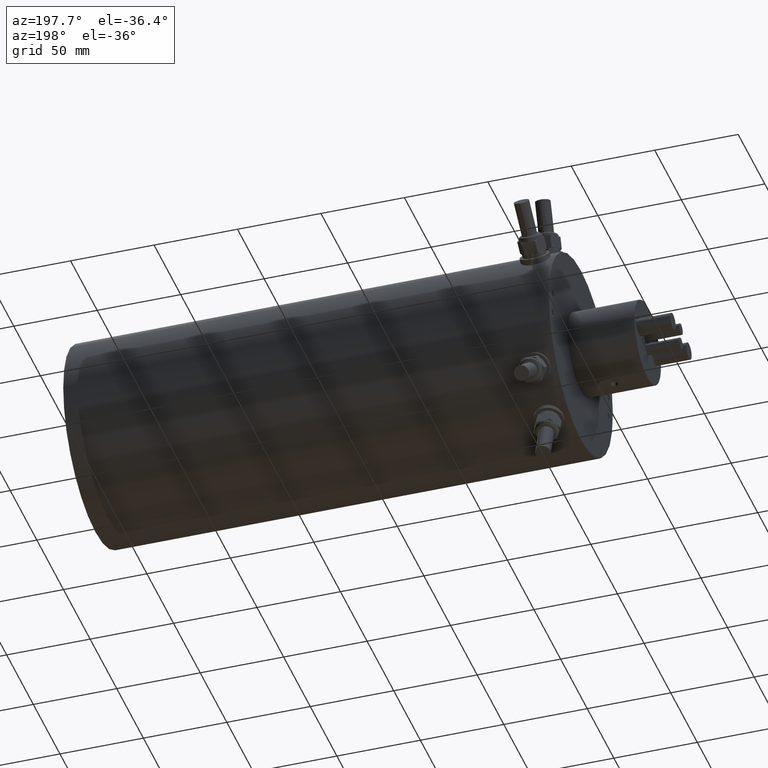
[diagram: clean part render]
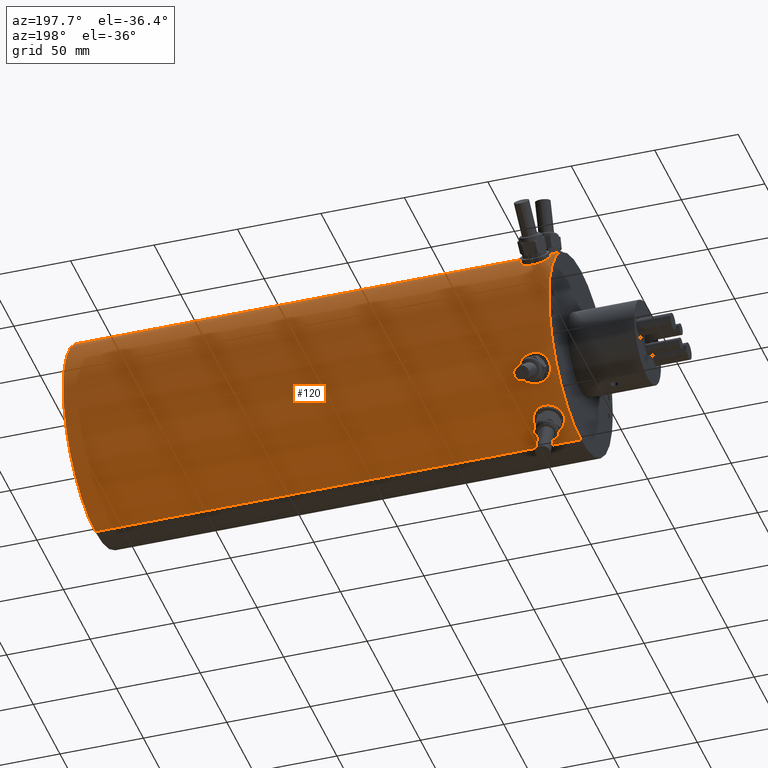
[diagram: same view with one face highlighted and labeled with its STEP entity id]
A machine part, auxiliary view. The second image highlights one B-rep face of the part: STEP entity #120.
In plain terms, the highlighted cylindrical surface (partial cylindrical patch) has radius 60 mm, axis along (1, -0, -0).
Its self-contained STEP definition (entity closure, byte-faithful):
#81 = EDGE_CURVE ( 'NONE', #1063, #1944, #4943, .T. ) ;
#120 = ADVANCED_FACE ( 'NONE', ( #3788, #1337, #3036 ), #2851, .T. ) ;
#128 = CARTESIAN_POINT ( 'NONE',  ( 54.49961068384467200, 51.04929052214537700, -31.52734152597862800 ) ) ;
#134 = CARTESIAN_POINT ( 'NONE',  ( 48.02437529377677100, 40.62290405727836200, -44.15750622305009900 ) ) ;
#145 = CARTESIAN_POINT ( 'NONE',  ( 60.80115797544112900, 47.92001640741030100, -36.10740536088575700 ) ) ;
#152 = CARTESIAN_POINT ( 'NONE',  ( 43.81817477773310500, 44.63703228801792700, -40.09510935350613900 ) ) ;
#157 = EDGE_CURVE ( 'NONE', #3726, #1540, #2169, .T. ) ;
#167 = CARTESIAN_POINT ( 'NONE',  ( 60.19848166192943500, 42.97778959142814900, -41.87057281649100600 ) ) ;
#175 = CARTESIAN_POINT ( 'NONE',  ( 46.60783385243068700, 49.98312170835593800, -33.19429326255863100 ) ) ;
#187 = CARTESIAN_POINT ( 'NONE',  ( 54.79641752463240300, 39.96931057223110900, -44.74887246636057400 ) ) ;
#199 = CARTESIAN_POINT ( 'NONE',  ( 50.46043446531330500, 12.16621057402824800, -58.75360918080611600 ) ) ;
#209 = DIRECTION ( 'NONE',  ( 0.0000000000000000000, 0.0000000000000000000, -1.000000000000000000 ) ) ;
#217 = CARTESIAN_POINT ( 'NONE',  ( 44.77694116726944900, 16.28574549737845300, -57.74807806524725600 ) ) ;
#226 = CARTESIAN_POINT ( 'NONE',  ( 330.9999999999999400, 0.0000000000000000000, 0.0000000000000000000 ) ) ;
#234 = CARTESIAN_POINT ( 'NONE',  ( 44.50412579120686700, 24.17704148792480400, -54.91390597230535100 ) ) ;
#251 = CARTESIAN_POINT ( 'NONE',  ( 51.02430710264894000, 28.54622015293073600, -52.77420420771422700 ) ) ;
#321 = CARTESIAN_POINT ( 'NONE',  ( 60.19211748356490700, 24.65614315764076300, -54.70199809677787100 ) ) ;
#338 = CARTESIAN_POINT ( 'NONE',  ( 60.80515477026768400, 17.55044457386748000, -57.37642762875801600 ) ) ;
#357 = CARTESIAN_POINT ( 'NONE',  ( 55.35351015672178200, 12.40809133542172300, -58.70303777524548400 ) ) ;
#439 = EDGE_LOOP ( 'NONE', ( #605, #1208 ) ) ;
#522 = CARTESIAN_POINT ( 'NONE',  ( 52.47999999999997600, 39.74096744707470200, -44.95170192963275500 ) ) ;
#536 = CARTESIAN_POINT ( 'NONE',  ( 55.34162323892668000, 50.92115027429966300, -31.73395258407509800 ) ) ;
#545 = CARTESIAN_POINT ( 'NONE',  ( 47.06447904855041000, 41.10831186309639000, -43.70516674192030800 ) ) ;
#559 = CARTESIAN_POINT ( 'NONE',  ( 61.07045475704094900, 47.41195642868186200, -36.77206015981716500 ) ) ;
#563 = CARTESIAN_POINT ( 'NONE',  ( 43.59021717148847600, 45.58722317472049200, -39.01464255734002500 ) ) ;
#576 = CARTESIAN_POINT ( 'NONE',  ( 59.54019001172614600, 42.29809580366339400, -42.55493589832875800 ) ) ;
#582 = CARTESIAN_POINT ( 'NONE',  ( 47.77767203715902200, 50.45059593139600200, -32.47712516286088700 ) ) ;
#597 = CARTESIAN_POINT ( 'NONE',  ( 53.64927542782810800, 39.78481181650599300, -44.91305187430835800 ) ) ;
#605 = ORIENTED_EDGE ( 'NONE', *, *, #81, .F. ) ;
#616 = CARTESIAN_POINT ( 'NONE',  ( 49.61952511148975000, 12.40367673881934100, -58.70397040052361600 ) ) ;
#631 = CARTESIAN_POINT ( 'NONE',  ( 44.25514392896392500, 17.28336020155741800, -57.45868535057630300 ) ) ;
#637 = DIRECTION ( 'NONE',  ( 1.000000000000000000, -0.0000000000000000000, -0.0000000000000000000 ) ) ;
#650 = CARTESIAN_POINT ( 'NONE',  ( 44.92855631780052100, 24.87502324304952900, -54.60120412410492500 ) ) ;
#666 = CARTESIAN_POINT ( 'NONE',  ( 51.89863143535617200, 28.63597117426592600, -52.72553463954761100 ) ) ;
#731 = CARTESIAN_POINT ( 'NONE',  ( 54.49961068384468600, 28.44631167436068600, -52.82812393635826000 ) ) ;
#747 = CARTESIAN_POINT ( 'NONE',  ( 60.80115797544115000, 23.44624887814149300, -55.22993851097467700 ) ) ;
#769 = CARTESIAN_POINT ( 'NONE',  ( 60.19848166192942100, 16.28457117643364800, -57.74987452580143100 ) ) ;
#786 = CARTESIAN_POINT ( 'NONE',  ( 54.51074857548507400, 12.16870126265632000, -58.75309421268810400 ) ) ;
#813 = CARTESIAN_POINT ( 'NONE',  ( 39.99999999999997900, 0.0000000000000000000, -60.00000000000000000 ) ) ;
#822 = EDGE_LOOP ( 'NONE', ( #2832, #4887 ) ) ;
#947 = CARTESIAN_POINT ( 'NONE',  ( 330.9999999999999400, 7.347880794884118400E-015, 60.00000000000000000 ) ) ;
#965 = CARTESIAN_POINT ( 'NONE',  ( 56.41157728291419500, 50.68319564177648600, -32.11281358142494500 ) ) ;
#970 = CARTESIAN_POINT ( 'NONE',  ( 46.39722302810839200, 41.52181673689707300, -43.31259787783233900 ) ) ;
#971 = CARTESIAN_POINT ( 'NONE',  ( 52.47999999999997600, 11.94083641532065500, -58.79979953794529000 ) ) ;
#972 = VERTEX_POINT ( 'NONE', #947 ) ;
#979 = CARTESIAN_POINT ( 'NONE',  ( 61.31133926362061000, 46.70978296926113400, -37.66323643914530800 ) ) ;
#985 = CARTESIAN_POINT ( 'NONE',  ( 43.64781037586733000, 46.70643728659167900, -37.66741781994534200 ) ) ;
#987 = CARTESIAN_POINT ( 'NONE',  ( 52.47999999999997600, 51.16973114730138400, -31.33143173097735400 ) ) ;
#999 = CARTESIAN_POINT ( 'NONE',  ( 58.97486873250759500, 41.82020726188239500, -43.02455873826281200 ) ) ;
#1006 = CARTESIAN_POINT ( 'NONE',  ( 48.54112053126192400, 50.68126959848905200, -32.11585624203376500 ) ) ;
#1019 = CARTESIAN_POINT ( 'NONE',  ( 52.47999999999997600, 39.74096744707470200, -44.95170192963275500 ) ) ;
#1034 = CARTESIAN_POINT ( 'NONE',  ( 48.53470964346901400, 12.83253051121331900, -58.61208897114283200 ) ) ;
#1051 = CARTESIAN_POINT ( 'NONE',  ( 43.88995482153924900, 18.33720688511496300, -57.12989185474712200 ) ) ;
#1063 = VERTEX_POINT ( 'NONE', #2209 ) ;
#1067 = CARTESIAN_POINT ( 'NONE',  ( 45.77927622806561900, 25.94070675835210700, -54.10409683000221300 ) ) ;
#1077 = CARTESIAN_POINT ( 'NONE',  ( 330.9999999999999400, 0.0000000000000000000, -60.00000000000000000 ) ) ;
#1084 = CARTESIAN_POINT ( 'NONE',  ( 52.47999999999997600, 28.64857121289410800, -52.71868138961496400 ) ) ;
#1123 = CARTESIAN_POINT ( 'NONE',  ( 330.9999999999999400, 0.0000000000000000000, -60.00000000000000000 ) ) ;
#1126 = CARTESIAN_POINT ( 'NONE',  ( 53.06047466969626900, 28.64857121289410800, -52.71868138961495700 ) ) ;
#1146 = CARTESIAN_POINT ( 'NONE',  ( 55.34162323892668700, 28.23203343543082900, -52.94298423744972100 ) ) ;
#1154 = VERTEX_POINT ( 'NONE', #2647 ) ;
#1164 = CARTESIAN_POINT ( 'NONE',  ( 61.07045475704094900, 22.67392863045074600, -55.55151646223229300 ) ) ;
#1181 = CARTESIAN_POINT ( 'NONE',  ( 59.54019001172615300, 15.35375754851601500, -58.00270344620278000 ) ) ;
#1199 = CARTESIAN_POINT ( 'NONE',  ( 53.06811196234870200, 11.94083641532065900, -58.79979953794531900 ) ) ;
#1208 = ORIENTED_EDGE ( 'NONE', *, *, #1359, .F. ) ;
#1337 = FACE_BOUND ( 'NONE', #439, .T. ) ;
#1359 = EDGE_CURVE ( 'NONE', #1944, #1063, #2198, .T. ) ;
#1365 = CARTESIAN_POINT ( 'NONE',  ( 51.31348332508414200, 39.78482475048070200, -44.91303603168620400 ) ) ;
#1381 = CARTESIAN_POINT ( 'NONE',  ( 57.17738133623625200, 50.45232711286882200, -32.47444182064396800 ) ) ;
#1388 = CARTESIAN_POINT ( 'NONE',  ( 45.41543254224568200, 42.28650820242383200, -42.56863727252368100 ) ) ;
#1397 = CARTESIAN_POINT ( 'NONE',  ( 61.37038377922747400, 45.58879960128772500, -39.01290236828730000 ) ) ;
#1406 = CARTESIAN_POINT ( 'NONE',  ( 44.04339495447889200, 47.75236368579575000, -36.33184384022649000 ) ) ;
#1420 = CARTESIAN_POINT ( 'NONE',  ( 57.91464067733073100, 41.10622237149735300, -43.70796437289236300 ) ) ;
#1425 = CARTESIAN_POINT ( 'NONE',  ( 49.61434651376066500, 50.92876124122224000, -31.72242003704573000 ) ) ;
#1449 = CARTESIAN_POINT ( 'NONE',  ( 47.30001276409982600, 13.57701187504819100, -58.44391474752685400 ) ) ;
#1466 = CARTESIAN_POINT ( 'NONE',  ( 43.64678649716178400, 19.42688350379911500, -56.77081978917068700 ) ) ;
#1485 = CARTESIAN_POINT ( 'NONE',  ( 47.05605769946993200, 27.01982355717634100, -53.57270097398065200 ) ) ;
#1496 = VERTEX_POINT ( 'NONE', #2698 ) ;
#1540 = VERTEX_POINT ( 'NONE', #1123 ) ;
#1563 = CARTESIAN_POINT ( 'NONE',  ( 56.41157728291419500, 27.83652818004265200, -53.15211016939621700 ) ) ;
#1580 = CARTESIAN_POINT ( 'NONE',  ( 61.31133926362061700, 21.62024043706516000, -55.97221102967019100 ) ) ;
#1601 = CARTESIAN_POINT ( 'NONE',  ( 58.97486873250760200, 14.70508251118915900, -58.17046448489257000 ) ) ;
#1786 = CARTESIAN_POINT ( 'NONE',  ( 50.46043446531330500, 39.91305201530242600, -44.79901282758655200 ) ) ;
#1800 = CARTESIAN_POINT ( 'NONE',  ( 58.35207205346161900, 49.98282675057183200, -33.19467616097935500 ) ) ;
#1806 = CARTESIAN_POINT ( 'NONE',  ( 44.77694116726947000, 42.97790835292148200, -41.86842987554178600 ) ) ;
#1819 = CARTESIAN_POINT ( 'NONE',  ( 61.14397126175063600, 44.64344398461283700, -40.08795158772226600 ) ) ;
#1825 = CARTESIAN_POINT ( 'NONE',  ( 44.50412579120687400, 48.39488510304594400, -35.46831684908399800 ) ) ;
#1835 = CARTESIAN_POINT ( 'NONE',  ( 56.93431000992978900, 40.63396042657264200, -44.14635197258299800 ) ) ;
#1840 = CARTESIAN_POINT ( 'NONE',  ( 51.02430710264893300, 51.10885393831846100, -31.43069143192270300 ) ) ;
#1845 = CARTESIAN_POINT ( 'NONE',  ( 52.47999999999997600, 11.94083641532065500, -58.79979953794529000 ) ) ;
#1864 = CARTESIAN_POINT ( 'NONE',  ( 46.61241718251703500, 14.11170251471278500, -58.31719091579168400 ) ) ;
#1879 = CARTESIAN_POINT ( 'NONE',  ( 43.58978406468358500, 21.06381479808064900, -56.18409878970147300 ) ) ;
#1896 = CARTESIAN_POINT ( 'NONE',  ( 48.02648421913404100, 27.58683075670856200, -53.28213658511104700 ) ) ;
#1902 = VERTEX_POINT ( 'NONE', #971 ) ;
#1914 = ORIENTED_EDGE ( 'NONE', *, *, #4886, .T. ) ;
#1944 = VERTEX_POINT ( 'NONE', #987 ) ;
#1963 = DIRECTION ( 'NONE',  ( 1.000000000000000000, -0.0000000000000000000, -0.0000000000000000000 ) ) ;
#1968 = CARTESIAN_POINT ( 'NONE',  ( 57.17738133623625900, 27.45577604946477000, -53.34985514683189900 ) ) ;
#1988 = CARTESIAN_POINT ( 'NONE',  ( 61.37038377922747400, 19.97460739860933600, -56.58056432694277800 ) ) ;
#2005 = CARTESIAN_POINT ( 'NONE',  ( 57.91464067733073800, 13.74505064088267200, -58.40531868037867000 ) ) ;
#2163 = CARTESIAN_POINT ( 'NONE',  ( 51.89174386437552800, 39.74096744707469500, -44.95170192963274800 ) ) ;
#2169 = LINE ( 'NONE', #1077, #2213 ) ;
#2176 = CARTESIAN_POINT ( 'NONE',  ( 53.06047466969626900, 51.16973114730137700, -31.33143173097733600 ) ) ;
#2180 = CARTESIAN_POINT ( 'NONE',  ( 49.61952511148973600, 40.09388435640951800, -44.63729130045347700 ) ) ;
#2192 = CARTESIAN_POINT ( 'NONE',  ( 59.54730265087157200, 49.26255481927010700, -34.25543291024613500 ) ) ;
#2198 = B_SPLINE_CURVE_WITH_KNOTS ( 'NONE', 3,
 ( #2940, #2176, #2557, #128, #2963, #536, #3332, #965, #3722, #1381, #4112, #1800, #4492, #2192, #4877, #2576, #145, #2980, #559, #3347, #979, #3744, #1397, #4128, #1819, #4513, #2208, #4898, #2599, #167, #3001, #576, #3363, #999, #3759, #1420, #4149, #1835, #4530, #2227, #4915, #2614, #187, #3020, #597, #3383, #1019 ),
 .UNSPECIFIED., .F., .F.,
 ( 4, 2, 2, 1, 2, 2, 2, 2, 2, 2, 2, 2, 2, 2, 2, 2, 2, 2, 2, 2, 2, 2, 2, 4 ),
 ( 0.02783248533309090600, 0.02957158933207742300, 0.03044114133157068900, 0.03131069333106396200, 0.03218024533055723100, 0.03304979733005049300, 0.03478890132903705900, 0.03652800532802362400, 0.03826710932701019000, 0.03913666132650347300, 0.04000621332599675600, 0.04174531732498335000, 0.04348442132396995000, 0.04435397332346325400, 0.04522352532295655800, 0.04696262932194315800, 0.04783218132143646200, 0.04870173332092976600, 0.05044083731991637300, 0.05131038931940966300, 0.05217994131890295300, 0.05304949331839625000, 0.05391904531788954700, 0.05565814931687615400 ),
 .UNSPECIFIED. ) ;
#2199 = CARTESIAN_POINT ( 'NONE',  ( 44.25514373163045400, 43.69717215439219900, -41.11900164645214100 ) ) ;
#2208 = CARTESIAN_POINT ( 'NONE',  ( 60.90434468433129200, 44.07631385244907600, -40.71064911556706500 ) ) ;
#2209 = CARTESIAN_POINT ( 'NONE',  ( 52.47999999999997600, 39.74096744707470200, -44.95170192963275500 ) ) ;
#2213 = VECTOR ( 'NONE', #4577, 1000.000000000000000 ) ;
#2214 = CARTESIAN_POINT ( 'NONE',  ( 44.92855631780050600, 48.84300411026174500, -34.84851822716971300 ) ) ;
#2227 = CARTESIAN_POINT ( 'NONE',  ( 56.16077188997894600, 40.33735514484084900, -44.41745562342038100 ) ) ;
#2231 = CARTESIAN_POINT ( 'NONE',  ( 51.89863143535618000, 51.16224581872704400, -31.34366683883161300 ) ) ;
#2258 = CARTESIAN_POINT ( 'NONE',  ( 45.78313587699641800, 14.90207093005289400, -58.12140640274249400 ) ) ;
#2272 = CARTESIAN_POINT ( 'NONE',  ( 43.87520824507041100, 22.67598036185615500, -55.55290778939812700 ) ) ;
#2284 = ORIENTED_EDGE ( 'NONE', *, *, #2902, .F. ) ;
#2286 = CARTESIAN_POINT ( 'NONE',  ( 48.80741413020456300, 27.94594260115370000, -53.09460382916579800 ) ) ;
#2353 = CARTESIAN_POINT ( 'NONE',  ( 58.35207205346159800, 26.68905963846187000, -53.73884620109176800 ) ) ;
#2367 = CARTESIAN_POINT ( 'NONE',  ( 61.14397126175063600, 18.61838080924111300, -57.03890645295462000 ) ) ;
#2383 = CARTESIAN_POINT ( 'NONE',  ( 56.93431000992981000, 13.11686599949191400, -58.54884250595252100 ) ) ;
#2471 = ORIENTED_EDGE ( 'NONE', *, *, #157, .F. ) ;
#2485 = DIRECTION ( 'NONE',  ( 1.000000000000000000, -0.0000000000000000000, -0.0000000000000000000 ) ) ;
#2557 = CARTESIAN_POINT ( 'NONE',  ( 53.63796547244613300, 51.14006732378952300, -31.38003856209659000 ) ) ;
#2562 = CARTESIAN_POINT ( 'NONE',  ( 48.53470964346900700, 40.41934190312110800, -44.34329276227671800 ) ) ;
#2576 = CARTESIAN_POINT ( 'NONE',  ( 60.46554900448473500, 48.40386575518908100, -35.45922387025422000 ) ) ;
#2585 = CARTESIAN_POINT ( 'NONE',  ( 43.88995482153924900, 44.44543292433408500, -40.30733421911115500 ) ) ;
#2599 = CARTESIAN_POINT ( 'NONE',  ( 60.47112654223362700, 43.33367964046209400, -41.50280011676076000 ) ) ;
#2605 = CARTESIAN_POINT ( 'NONE',  ( 45.77927622806562600, 49.51735945985675600, -33.88516892441893400 ) ) ;
#2614 = CARTESIAN_POINT ( 'NONE',  ( 55.35351015672177500, 40.09724119657559500, -44.63427632496924200 ) ) ;
#2619 = CARTESIAN_POINT ( 'NONE',  ( 52.47999999999997600, 51.16973114730138400, -31.33143173097735400 ) ) ;
#2625 = CARTESIAN_POINT ( 'NONE',  ( 51.31348332508415000, 11.99815090318501600, -58.78824253976646500 ) ) ;
#2641 = CARTESIAN_POINT ( 'NONE',  ( 44.92800868531912100, 16.04228681148401800, -57.81612619033227000 ) ) ;
#2647 = CARTESIAN_POINT ( 'NONE',  ( 39.99999999999997900, 7.347880794884118400E-015, 60.00000000000000000 ) ) ;
#2659 = CARTESIAN_POINT ( 'NONE',  ( 44.37802562683422300, 23.93243942736778300, -55.02100618543929800 ) ) ;
#2677 = CARTESIAN_POINT ( 'NONE',  ( 50.16856739708416100, 28.39422007099077700, -52.85623450141513000 ) ) ;
#2698 = CARTESIAN_POINT ( 'NONE',  ( 52.47999999999997600, 28.64857121289410800, -52.71868138961496400 ) ) ;
#2738 = CARTESIAN_POINT ( 'NONE',  ( 52.47999999999997600, 28.64857121289410800, -52.71868138961496400 ) ) ;
#2756 = CARTESIAN_POINT ( 'NONE',  ( 59.54730265087156500, 25.53490747368829600, -54.29735252754174000 ) ) ;
#2771 = CARTESIAN_POINT ( 'NONE',  ( 60.90434468433131300, 17.81588294361327100, -57.29461326486013200 ) ) ;
#2793 = CARTESIAN_POINT ( 'NONE',  ( 55.89915857554497300, 12.60211420501915000, -58.66194764552503200 ) ) ;
#2832 = ORIENTED_EDGE ( 'NONE', *, *, #4808, .F. ) ;
#2851 = CYLINDRICAL_SURFACE ( 'NONE', #4913, 60.00000000000000000 ) ;
#2902 = EDGE_CURVE ( 'NONE', #1540, #972, #3010, .T. ) ;
#2940 = CARTESIAN_POINT ( 'NONE',  ( 52.47999999999997600, 51.16973114730138400, -31.33143173097735400 ) ) ;
#2963 = CARTESIAN_POINT ( 'NONE',  ( 54.78493137023227900, 51.01127177980359300, -31.58888164011427300 ) ) ;
#2969 = CARTESIAN_POINT ( 'NONE',  ( 47.30001276409985400, 40.97999456503819700, -43.82540893044610900 ) ) ;
#2980 = CARTESIAN_POINT ( 'NONE',  ( 60.90077548725222600, 47.75226886174774400, -36.32903576132729700 ) ) ;
#2989 = CARTESIAN_POINT ( 'NONE',  ( 43.64678649716179800, 45.20958452523626600, -39.45153037919053000 ) ) ;
#3001 = CARTESIAN_POINT ( 'NONE',  ( 59.71490475704330700, 42.46588494153984100, -42.38758583203854600 ) ) ;
#3005 = CARTESIAN_POINT ( 'NONE',  ( 47.05605769946989600, 50.18620409327827000, -32.88540821422635200 ) ) ;
#3010 = CIRCLE ( 'NONE', #3974, 60.00000000000000000 ) ;
#3020 = CARTESIAN_POINT ( 'NONE',  ( 54.51074857548507400, 39.91495153086825800, -44.79732150780017700 ) ) ;
#3034 = CARTESIAN_POINT ( 'NONE',  ( 50.17849272848246000, 12.23600950162802500, -58.73914715845602100 ) ) ;
#3036 = FACE_OUTER_BOUND ( 'NONE', #3245, .T. ) ;
#3052 = CARTESIAN_POINT ( 'NONE',  ( 44.50288921625360000, 16.77976382391259200, -57.60647144765065500 ) ) ;
#3057 = CARTESIAN_POINT ( 'NONE',  ( 330.9999999999999400, 0.0000000000000000000, 0.0000000000000000000 ) ) ;
#3058 = DIRECTION ( 'NONE',  ( 1.000000000000000000, -0.0000000000000000000, -0.0000000000000000000 ) ) ;
#3064 = CARTESIAN_POINT ( 'NONE',  ( 44.77923781015156400, 24.64783341367635200, -54.70421110166650200 ) ) ;
#3082 = CARTESIAN_POINT ( 'NONE',  ( 51.31496238340456300, 28.58477439550647900, -52.75330815102992700 ) ) ;
#3132 = CARTESIAN_POINT ( 'NONE',  ( 53.63796547244614000, 28.59857817259984700, -52.74594422840574700 ) ) ;
#3149 = CARTESIAN_POINT ( 'NONE',  ( 60.46554900448474300, 24.18936545023822800, -54.91052154771431800 ) ) ;
#3160 = CARTESIAN_POINT ( 'NONE',  ( 60.47112654223362700, 16.77666734971625200, -57.60931904953363200 ) ) ;
#3177 = CARTESIAN_POINT ( 'NONE',  ( 54.79641752463236800, 12.24000209412171400, -58.73831563269379800 ) ) ;
#3223 = ORIENTED_EDGE ( 'NONE', *, *, #4614, .T. ) ;
#3245 = EDGE_LOOP ( 'NONE', ( #1914, #3223, #2284, #2471 ) ) ;
#3295 = LINE ( 'NONE', #3655, #3858 ) ;
#3332 = CARTESIAN_POINT ( 'NONE',  ( 55.88737095989259300, 50.81665377475443500, -31.90148644554675900 ) ) ;
#3335 = CARTESIAN_POINT ( 'NONE',  ( 46.61241718251704900, 41.37968832628591500, -43.44831755306626100 ) ) ;
#3347 = CARTESIAN_POINT ( 'NONE',  ( 61.14110653746355700, 47.23874371548809100, -36.99434947676530100 ) ) ;
#3353 = CARTESIAN_POINT ( 'NONE',  ( 43.58978406468358500, 46.33384811059922700, -38.12494944157563700 ) ) ;
#3363 = CARTESIAN_POINT ( 'NONE',  ( 59.16982811718381200, 41.97505134630775100, -42.87361125916017100 ) ) ;
#3368 = CARTESIAN_POINT ( 'NONE',  ( 48.02648421913404100, 50.53196453776706000, -32.35026847226406200 ) ) ;
#3383 = CARTESIAN_POINT ( 'NONE',  ( 53.06811196234869500, 39.74096744707470900, -44.95170192963276200 ) ) ;
#3394 = CARTESIAN_POINT ( 'NONE',  ( 49.34192031267142700, 12.50195926473159800, -58.68316383566573800 ) ) ;
#3415 = CARTESIAN_POINT ( 'NONE',  ( 44.05934704519030700, 17.80560131565119900, -57.29780328660679300 ) ) ;
#3419 = DIRECTION ( 'NONE',  ( 0.0000000000000000000, 0.0000000000000000000, -1.000000000000000000 ) ) ;
#3432 = CARTESIAN_POINT ( 'NONE',  ( 45.41104795524982100, 25.53283656216434100, -54.29831811085408300 ) ) ;
#3448 = CARTESIAN_POINT ( 'NONE',  ( 52.18969151463969800, 28.64857121289411900, -52.71868138961497200 ) ) ;
#3507 = CARTESIAN_POINT ( 'NONE',  ( 54.78493137023230000, 28.38261642060495000, -52.86240986738063400 ) ) ;
#3524 = CARTESIAN_POINT ( 'NONE',  ( 60.90077548725223300, 23.19016004195444600, -55.33800229517667900 ) ) ;
#3539 = CARTESIAN_POINT ( 'NONE',  ( 59.71490475704332800, 15.58274223754120900, -57.94166860640866900 ) ) ;
#3558 = CARTESIAN_POINT ( 'NONE',  ( 53.64927542782809400, 11.99813178072325600, -58.78824979289232300 ) ) ;
#3655 = CARTESIAN_POINT ( 'NONE',  ( 330.9999999999999400, 7.347880794884118400E-015, 60.00000000000000000 ) ) ;
#3722 = CARTESIAN_POINT ( 'NONE',  ( 56.92487479823074600, 50.53465800060630600, -32.34605783306055600 ) ) ;
#3726 = VERTEX_POINT ( 'NONE', #813 ) ;
#3728 = CARTESIAN_POINT ( 'NONE',  ( 45.78313587699642500, 41.96627519579470100, -42.88357898342803800 ) ) ;
#3744 = CARTESIAN_POINT ( 'NONE',  ( 61.36961238972138900, 46.34403566089899600, -38.11266927079773800 ) ) ;
#3750 = CARTESIAN_POINT ( 'NONE',  ( 43.87520824507041100, 47.41442894378357000, -36.77223921878507400 ) ) ;
#3759 = CARTESIAN_POINT ( 'NONE',  ( 58.36141999622698500, 41.37582223362068100, -43.45354870074405100 ) ) ;
#3763 = CARTESIAN_POINT ( 'NONE',  ( 48.80741413020455600, 50.74919813988382300, -32.00830441935120500 ) ) ;
#3787 = CARTESIAN_POINT ( 'NONE',  ( 48.02437529377676400, 13.10171377757588100, -58.55297418557002200 ) ) ;
#3788 = FACE_BOUND ( 'NONE', #822, .T. ) ;
#3808 = CARTESIAN_POINT ( 'NONE',  ( 43.81817477773309100, 18.60924923421661200, -57.04189941166035300 ) ) ;
#3824 = CARTESIAN_POINT ( 'NONE',  ( 46.60783385243070900, 26.68950652860631600, -53.73866208022443700 ) ) ;
#3858 = VECTOR ( 'NONE', #2485, 1000.000000000000000 ) ;
#3895 = CARTESIAN_POINT ( 'NONE',  ( 55.88737095989260700, 28.05776988148228300, -53.03582456770571000 ) ) ;
#3915 = CARTESIAN_POINT ( 'NONE',  ( 61.14110653746355700, 22.41277736209247000, -55.65741830110238200 ) ) ;
#3931 = CARTESIAN_POINT ( 'NONE',  ( 59.16982811718380500, 14.91465516147856000, -58.11716217556512000 ) ) ;
#3952 = CARTESIAN_POINT ( 'NONE',  ( 52.47999999999997600, 11.94083641532065500, -58.79979953794529000 ) ) ;
#3974 = AXIS2_PLACEMENT_3D ( 'NONE', #3057, #637, #3419 ) ;
#4017 = CIRCLE ( 'NONE', #4390, 60.00000000000000000 ) ;
#4112 = CARTESIAN_POINT ( 'NONE',  ( 57.90500682842137800, 50.18597501226965100, -32.88578177165762600 ) ) ;
#4116 = CARTESIAN_POINT ( 'NONE',  ( 44.92800868531912100, 42.80109100870742400, -42.04909062349251100 ) ) ;
#4128 = CARTESIAN_POINT ( 'NONE',  ( 61.31309040483919400, 45.21071663732026700, -39.45015734274375800 ) ) ;
#4135 = CARTESIAN_POINT ( 'NONE',  ( 44.37802562683420100, 48.23660361135249300, -35.68336938468722500 ) ) ;
#4149 = CARTESIAN_POINT ( 'NONE',  ( 57.18569100328829100, 40.74584507270422800, -44.04319500366020900 ) ) ;
#4155 = CARTESIAN_POINT ( 'NONE',  ( 50.16856739708416800, 51.01823315283160600, -31.57773179111757100 ) ) ;
#4163 = CARTESIAN_POINT ( 'NONE',  ( 51.89174386437553500, 11.94083641532065500, -58.79979953794529000 ) ) ;
#4179 = CARTESIAN_POINT ( 'NONE',  ( 47.06447904855038900, 13.74825900917445800, -58.40394060668594300 ) ) ;
#4192 = CARTESIAN_POINT ( 'NONE',  ( 43.59021717148847600, 19.97237207862854200, -56.58128316158620000 ) ) ;
#4208 = B_SPLINE_CURVE_WITH_KNOTS ( 'NONE', 3,
 ( #2738, #1126, #3132, #731, #3507, #1146, #3895, #1563, #4283, #1968, #4653, #2353, #5063, #2756, #321, #3149, #747, #3524, #1164, #3915, #1580, #4300, #1988, #4674, #2367, #5082, #2771, #338, #3160, #769, #3539, #1181, #3931, #1601, #4315, #2005, #4693, #2383, #5101, #2793, #357, #3177, #786, #3558, #1199, #3952 ),
 .UNSPECIFIED., .F., .F.,
 ( 4, 2, 2, 1, 2, 2, 2, 2, 2, 2, 2, 2, 2, 2, 2, 2, 2, 2, 2, 2, 1, 2, 2, 4 ),
 ( 0.02783248533309089200, 0.02957158933207743400, 0.03044114133157071300, 0.03131069333106398900, 0.03218024533055727200, 0.03304979733005054800, 0.03478890132903712800, 0.03652800532802370800, 0.03826710932701028100, 0.03913666132650357000, 0.04000621332599686000, 0.04174531732498342600, 0.04348442132396999200, 0.04435397332346327500, 0.04522352532295655100, 0.04696262932194311000, 0.04783218132143639300, 0.04870173332092968300, 0.05044083731991627600, 0.05131038931940958000, 0.05217994131890288400, 0.05304949331839618800, 0.05391904531788949100, 0.05565814931687612000 ),
 .UNSPECIFIED. ) ;
#4211 = CARTESIAN_POINT ( 'NONE',  ( 47.77767203715905000, 27.45293513122227200, -53.35131339862238800 ) ) ;
#4277 = CARTESIAN_POINT ( 'NONE',  ( 39.99999999999997900, 0.0000000000000000000, 0.0000000000000000000 ) ) ;
#4283 = CARTESIAN_POINT ( 'NONE',  ( 56.92487479823077500, 27.59126868355326000, -53.27983679601428000 ) ) ;
#4300 = CARTESIAN_POINT ( 'NONE',  ( 61.36961238972138900, 21.07877756083152600, -56.17855762499490900 ) ) ;
#4315 = CARTESIAN_POINT ( 'NONE',  ( 58.36141999622699900, 14.10573880641241500, -58.31978817623899400 ) ) ;
#4390 = AXIS2_PLACEMENT_3D ( 'NONE', #4277, #1963, #4648 ) ;
#4467 = EDGE_CURVE ( 'NONE', #1496, #1902, #4208, .T. ) ;
#4481 = CARTESIAN_POINT ( 'NONE',  ( 50.17849272848246800, 39.96626864858570400, -44.75158888504137900 ) ) ;
#4492 = CARTESIAN_POINT ( 'NONE',  ( 59.17200947814927800, 49.52260221318905300, -33.87744626509221700 ) ) ;
#4499 = CARTESIAN_POINT ( 'NONE',  ( 44.50288921625360000, 43.33493746483679100, -41.49878578409205000 ) ) ;
#4513 = CARTESIAN_POINT ( 'NONE',  ( 61.07363220747839700, 44.45433807046558900, -40.29752127547266800 ) ) ;
#4521 = CARTESIAN_POINT ( 'NONE',  ( 44.77923781015154200, 48.69775543532392000, -35.05131980119166700 ) ) ;
#4530 = CARTESIAN_POINT ( 'NONE',  ( 56.42238520441296100, 40.42998542397982900, -44.33323145285300600 ) ) ;
#4533 = CARTESIAN_POINT ( 'NONE',  ( 51.31496238340455600, 51.13179486347058900, -31.39331779470732500 ) ) ;
#4554 = CARTESIAN_POINT ( 'NONE',  ( 46.39722302810839200, 14.30264916651851200, -58.27071843455132000 ) ) ;
#4571 = CARTESIAN_POINT ( 'NONE',  ( 43.64781037586730900, 21.61525230048038200, -55.97415937033116500 ) ) ;
#4577 = DIRECTION ( 'NONE',  ( 1.000000000000000000, -0.0000000000000000000, -0.0000000000000000000 ) ) ;
#4583 = CARTESIAN_POINT ( 'NONE',  ( 48.54112053126191700, 27.83333884732252600, -53.15378216913483600 ) ) ;
#4614 = EDGE_CURVE ( 'NONE', #1154, #972, #3295, .T. ) ;
#4648 = DIRECTION ( 'NONE',  ( 0.0000000000000000000, 0.0000000000000000000, -1.000000000000000000 ) ) ;
#4653 = CARTESIAN_POINT ( 'NONE',  ( 57.90500682842134900, 27.01943838848768200, -53.57290994370158200 ) ) ;
#4674 = CARTESIAN_POINT ( 'NONE',  ( 61.31309040483918700, 19.42855045984718000, -56.77019676076943700 ) ) ;
#4693 = CARTESIAN_POINT ( 'NONE',  ( 57.18569100328828400, 13.26533942979669900, -58.51544827335372600 ) ) ;
#4807 = B_SPLINE_CURVE_WITH_KNOTS ( 'NONE', 3,
 ( #1845, #4163, #2625, #199, #3034, #616, #3394, #1034, #3787, #1449, #4179, #1864, #4554, #2258, #4947, #2641, #217, #3052, #631, #3415, #1051, #3808, #1466, #4192, #1879, #4571, #2272, #4961, #2659, #234, #3064, #650, #3432, #1067, #3824, #1485, #4211, #1896, #4583, #2286, #4982, #2677, #251, #3082, #666, #3448, #1084 ),
 .UNSPECIFIED., .F., .F.,
 ( 4, 2, 2, 2, 2, 2, 2, 2, 2, 1, 2, 2, 2, 2, 2, 2, 2, 2, 2, 2, 2, 2, 2, 4 ),
 ( 0.0000000000000000000, 0.001739530333318158000, 0.002609295499977237300, 0.003479060666636316000, 0.005218590999954492000, 0.006088356166613574100, 0.006958121333272655400, 0.008697651666590828400, 0.009567416833249917400, 0.01043718199990900500, 0.01130694716656809400, 0.01217671233322718100, 0.01391624266654536800, 0.01565577299986355500, 0.01739530333318174000, 0.01826506849984083100, 0.01913483366649991800, 0.02087436399981810300, 0.02261389433313629500, 0.02348365949979539000, 0.02435342466645449100, 0.02609295499977267900, 0.02696272016643178800, 0.02783248533309089200 ),
 .UNSPECIFIED. ) ;
#4808 = EDGE_CURVE ( 'NONE', #1902, #1496, #4807, .T. ) ;
#4866 = CARTESIAN_POINT ( 'NONE',  ( 49.34192031267141200, 40.16859623816871000, -44.57013102376494400 ) ) ;
#4877 = CARTESIAN_POINT ( 'NONE',  ( 60.19211748356490700, 48.70384538225175000, -35.04524841075721000 ) ) ;
#4885 = CARTESIAN_POINT ( 'NONE',  ( 44.05934704519030700, 44.06900471231500700, -40.71855256941933000 ) ) ;
#4886 = EDGE_CURVE ( 'NONE', #3726, #1154, #4017, .T. ) ;
#4887 = ORIENTED_EDGE ( 'NONE', *, *, #4467, .F. ) ;
#4898 = CARTESIAN_POINT ( 'NONE',  ( 60.80515477026766300, 43.88734466305903200, -40.91422161796998600 ) ) ;
#4903 = CARTESIAN_POINT ( 'NONE',  ( 45.41104795524982100, 49.26124414893754300, -34.25730458568610000 ) ) ;
#4913 = AXIS2_PLACEMENT_3D ( 'NONE', #226, #3058, #209 ) ;
#4915 = CARTESIAN_POINT ( 'NONE',  ( 55.62633424573464000, 40.17098345265729600, -44.56797810744696900 ) ) ;
#4919 = CARTESIAN_POINT ( 'NONE',  ( 52.18969151463971200, 51.16973114730139100, -31.33143173097734600 ) ) ;
#4943 = B_SPLINE_CURVE_WITH_KNOTS ( 'NONE', 3,
 ( #522, #2163, #1365, #1786, #4481, #2180, #4866, #2562, #134, #2969, #545, #3335, #970, #3728, #1388, #4116, #1806, #4499, #2199, #4885, #2585, #152, #2989, #563, #3353, #985, #3750, #1406, #4135, #1825, #4521, #2214, #4903, #2605, #175, #3005, #582, #3368, #1006, #3763, #1425, #4155, #1840, #4533, #2231, #4919, #2619 ),
 .UNSPECIFIED., .F., .F.,
 ( 4, 2, 2, 2, 2, 2, 2, 2, 2, 1, 2, 2, 2, 2, 2, 2, 2, 2, 2, 2, 2, 2, 2, 4 ),
 ( 0.0000000000000000000, 0.001739530333318159500, 0.002609295499977239100, 0.003479060666636319000, 0.005218590999954478100, 0.006088356166613549800, 0.006958121333272621600, 0.008697651666590788500, 0.009567416833249872300, 0.01043718199990895600, 0.01130694716656803700, 0.01217671233322712100, 0.01391624266654531800, 0.01565577299986351300, 0.01739530333318171200, 0.01826506849984080700, 0.01913483366649990800, 0.02087436399981810300, 0.02261389433313629900, 0.02348365949979540000, 0.02435342466645449800, 0.02609295499977269000, 0.02696272016643180100, 0.02783248533309090600 ),
 .UNSPECIFIED. ) ;
#4947 = CARTESIAN_POINT ( 'NONE',  ( 45.41543254224568200, 15.33687170437617200, -58.00877538370257700 ) ) ;
#4961 = CARTESIAN_POINT ( 'NONE',  ( 44.04339495447889900, 23.18883812253931600, -55.34048157486321900 ) ) ;
#4982 = CARTESIAN_POINT ( 'NONE',  ( 49.61434651376068000, 28.24439099964784100, -52.93680224221325400 ) ) ;
#5063 = CARTESIAN_POINT ( 'NONE',  ( 59.17200947814927800, 25.94910844558702200, -54.10003018750667500 ) ) ;
#5082 = CARTESIAN_POINT ( 'NONE',  ( 61.07363220747837600, 18.34982543970851100, -57.12584616933602900 ) ) ;
#5101 = CARTESIAN_POINT ( 'NONE',  ( 56.42238520441299000, 12.84677872537453800, -58.60869738201593300 ) ) ;